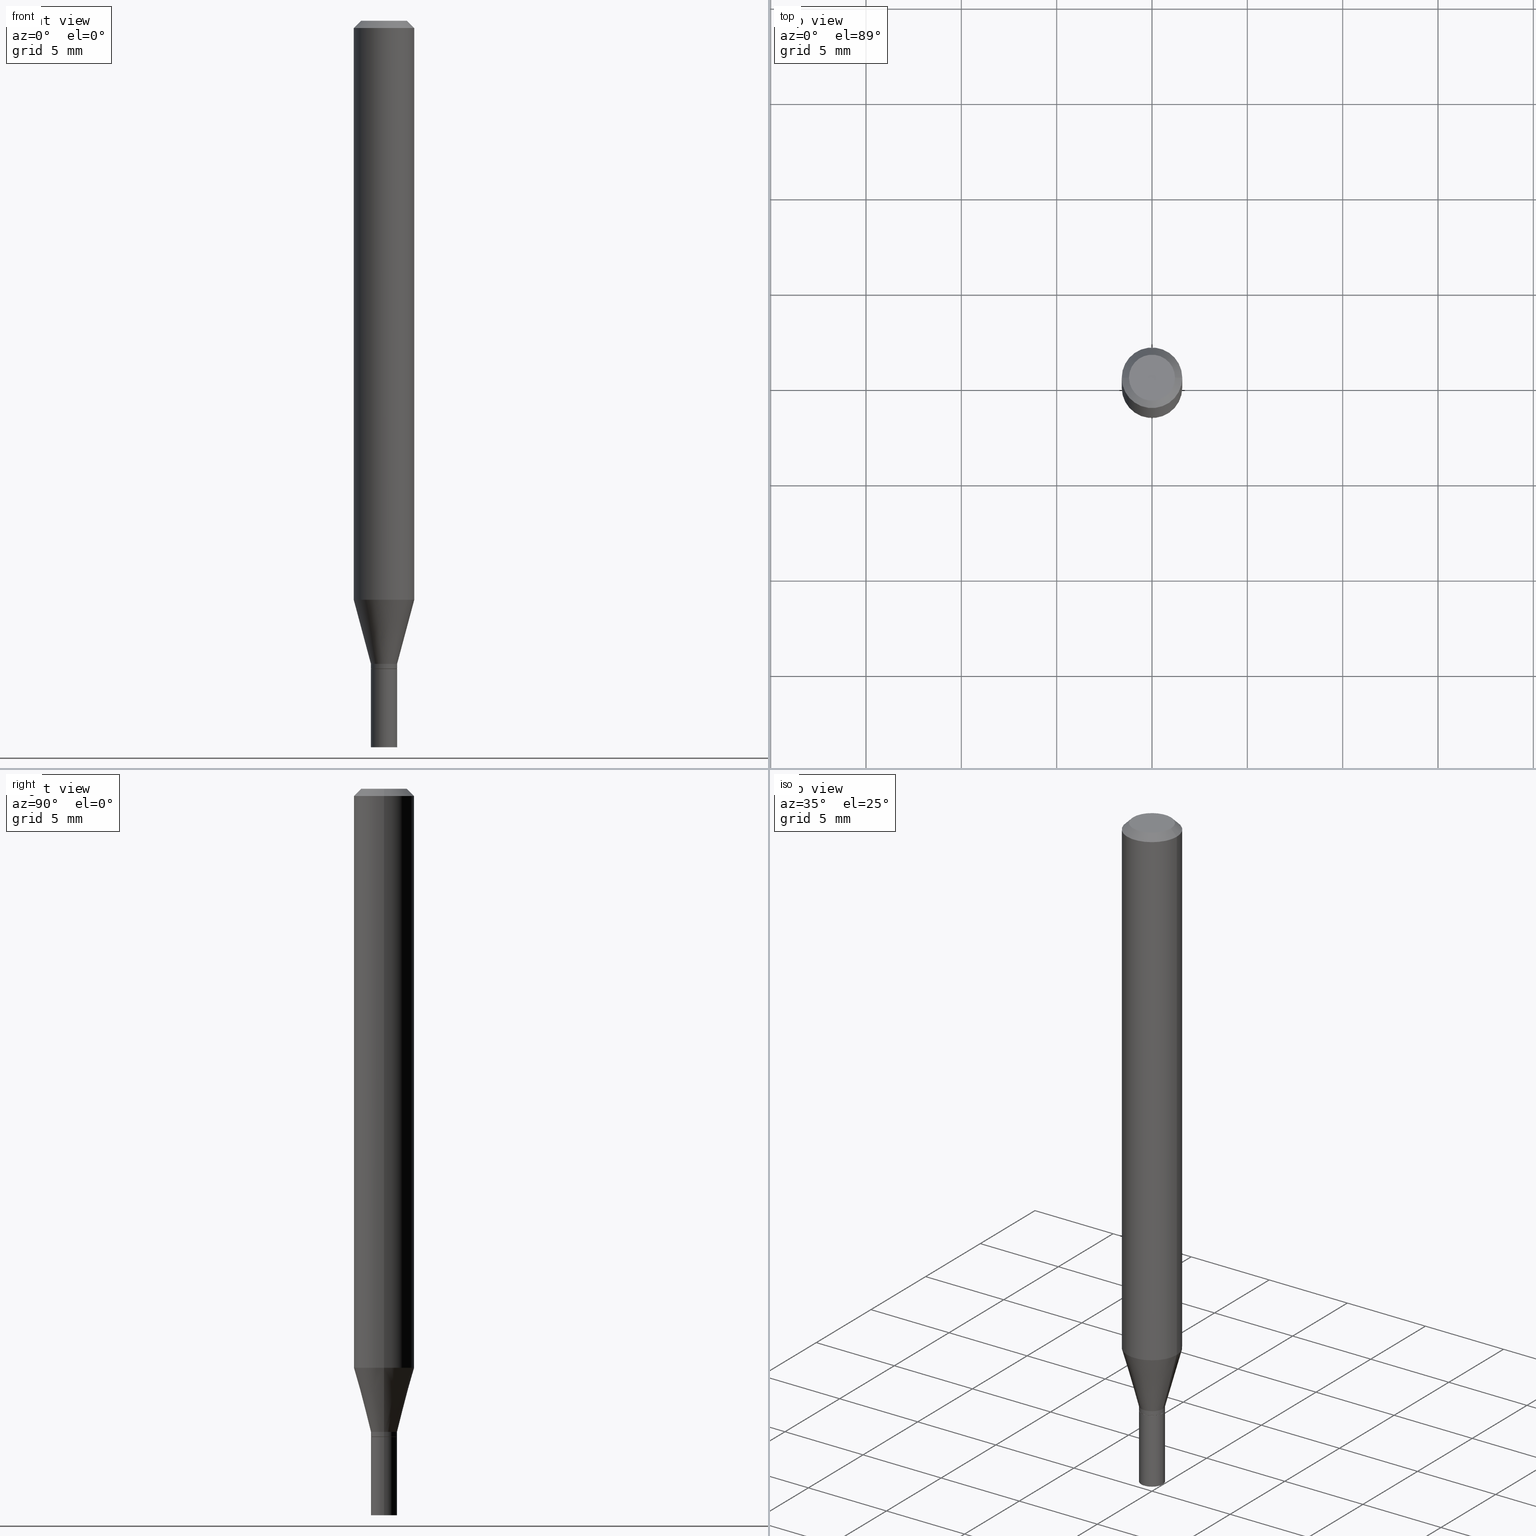
[diagram: canonical four-view strip — front | top / right | iso, engineering-drawing reading convention]
A machine part, canonical four-view strip (front | top / right | iso — engineering-drawing reading convention). The complete STEP part file that produces these views, byte-faithful:
ISO-10303-21;
HEADER;
FILE_DESCRIPTION (( 'STEP AP203' ),
    '1' );
FILE_NAME ('02483.STEP',
    '2024-03-18T20:52:33',
    ( '' ),
    ( '' ),
    'SwSTEP 2.0',
    'SolidWorks 2023',
    '' );
FILE_SCHEMA (( 'CONFIG_CONTROL_DESIGN' ));
ENDSEC;

DATA;
#1 = VERTEX_POINT ( 'NONE', #338 ) ;
#2 = COORDINATED_UNIVERSAL_TIME_OFFSET ( 5, 0, .BEHIND. ) ;
#3 = DIRECTION ( 'NONE',  ( 0.7071067811865420216, -7.319954787623237113E-15, -0.7071067811865530128 ) ) ;
#4 = ORIENTED_EDGE ( 'NONE', *, *, #87, .F. ) ;
#5 = AXIS2_PLACEMENT_3D ( 'NONE', #382, #321, #357 ) ;
#6 = CYLINDRICAL_SURFACE ( 'NONE', #419, 0.02699999999999999969 ) ;
#7 = EDGE_LOOP ( 'NONE', ( #116, #214 ) ) ;
#8 = DIMENSIONAL_EXPONENTS ( 1.000000000000000000, 0.000000000000000000, 0.000000000000000000, 0.000000000000000000, 0.000000000000000000, 0.000000000000000000, 0.000000000000000000 ) ;
#9 = VERTEX_POINT ( 'NONE', #70 ) ;
#10 = EDGE_CURVE ( 'NONE', #275, #85, #435, .T. ) ;
#11 = DIRECTION ( 'NONE',  ( 1.000000000000000000, -6.982962677686267499E-15, 4.852736867747366768E-29 ) ) ;
#12 = FACE_OUTER_BOUND ( 'NONE', #453, .T. ) ;
#13 = DIRECTION ( 'NONE',  ( 1.000000000000000000, -6.982962677686261189E-15, 0.000000000000000000 ) ) ;
#14 = ORIENTED_EDGE ( 'NONE', *, *, #90, .F. ) ;
#15 = CARTESIAN_POINT ( 'NONE',  ( 3.272037262675712888E-29, -4.671602031372128143E-15, -1.338000000000000078 ) ) ;
#16 = CONICAL_SURFACE ( 'NONE', #374, 0.02649999999999999925, 0.7853981633974739252 ) ;
#17 = ORIENTED_EDGE ( 'NONE', *, *, #21, .T. ) ;
#18 = PERSON ( 'UNSPECIFIED', 'UNSPECIFIED', 'UNSPECIFIED', ('UNSPECIFIED'), ('UNSPECIFIED'), ('UNSPECIFIED') ) ;
#19 = CARTESIAN_POINT ( 'NONE',  ( 3.272037262675712888E-29, -4.671602031372128143E-15, -1.338000000000000078 ) ) ;
#20 = DIRECTION ( 'NONE',  ( 2.445468806185136597E-29, -3.491481338843145583E-15, -1.000000000000000000 ) ) ;
#21 = EDGE_CURVE ( 'NONE', #449, #38, #451, .T. ) ;
#22 = VERTEX_POINT ( 'NONE', #149 ) ;
#23 = CARTESIAN_POINT ( 'NONE',  ( -0.02699999999999992337, -4.478009752047480997E-15, -1.337500000000000133 ) ) ;
#24 = CYLINDRICAL_SURFACE ( 'NONE', #152, 0.06250000000000000000 ) ;
#25 = LINE ( 'NONE', #279, #172 ) ;
#26 = EDGE_CURVE ( 'NONE', #85, #22, #224, .T. ) ;
#27 = CIRCLE ( 'NONE', #217, 0.06250000000000000000 ) ;
#28 = AXIS2_PLACEMENT_3D ( 'NONE', #48, #74, #366 ) ;
#29 = ORIENTED_EDGE ( 'NONE', *, *, #193, .F. ) ;
#30 = CYLINDRICAL_SURFACE ( 'NONE', #105, 0.02699999999999999969 ) ;
#31 = FACE_OUTER_BOUND ( 'NONE', #88, .T. ) ;
#32 = CARTESIAN_POINT ( 'NONE',  ( -0.02699999999999992684, 1.918465386552265303E-16, -1.328112474368820963E-30 ) ) ;
#33 = CONICAL_SURFACE ( 'NONE', #307, 0.02699999999999992684, 0.2617993877991494633 ) ;
#34 = APPROVAL_ROLE ( '' ) ;
#35 = APPROVAL ( #337, 'UNSPECIFIED' ) ;
#36 = AXIS2_PLACEMENT_3D ( 'NONE', #192, #43, #13 ) ;
#37 = AXIS2_PLACEMENT_3D ( 'NONE', #387, #412, #454 ) ;
#38 = VERTEX_POINT ( 'NONE', #196 ) ;
#39 = VECTOR ( 'NONE', #316, 39.37007874015748143 ) ;
#40 = ADVANCED_FACE ( 'NONE', ( #125 ), #322, .F. ) ;
#41 = DIRECTION ( 'NONE',  ( 1.000000000000000000, -6.982962677686280910E-15, 0.000000000000000000 ) ) ;
#42 = ADVANCED_FACE ( 'NONE', ( #121 ), #56, .T. ) ;
#43 = DIRECTION ( 'NONE',  ( -2.445468806185136597E-29, 3.491481338843145583E-15, 1.000000000000000000 ) ) ;
#44 = DIRECTION ( 'NONE',  ( 1.000000000000000000, -6.982962677686261189E-15, 0.000000000000000000 ) ) ;
#45 = CARTESIAN_POINT ( 'NONE',  ( 3.668203209277705088E-31, -5.237222008264718399E-17, -0.01499999999999999944 ) ) ;
#46 = EDGE_CURVE ( 'NONE', #296, #22, #461, .T. ) ;
#47 = ORIENTED_EDGE ( 'NONE', *, *, #65, .T. ) ;
#48 = CARTESIAN_POINT ( 'NONE',  ( 0.000000000000000000, 0.000000000000000000, 0.000000000000000000 ) ) ;
#49 = CIRCLE ( 'NONE', #410, 0.02699999999999992337 ) ;
#50 = EDGE_CURVE ( 'NONE', #449, #265, #94, .T. ) ;
#51 = AXIS2_PLACEMENT_3D ( 'NONE', #123, #408, #445 ) ;
#52 = CC_DESIGN_DATE_AND_TIME_ASSIGNMENT ( #262, #427, ( #258 ) ) ;
#53 = DATE_AND_TIME ( #375, #369 ) ;
#54 = CARTESIAN_POINT ( 'NONE',  ( 3.270814528272620647E-29, -4.669856290702708218E-15, -1.337500000000000133 ) ) ;
#55 = DIRECTION ( 'NONE',  ( -2.445468806185136597E-29, 3.491481338843145583E-15, 1.000000000000000000 ) ) ;
#56 = CYLINDRICAL_SURFACE ( 'NONE', #145, 0.02699999999999992684 ) ;
#57 = AXIS2_PLACEMENT_3D ( 'NONE', #19, #304, #397 ) ;
#58 = FACE_OUTER_BOUND ( 'NONE', #260, .T. ) ;
#59 = DIRECTION ( 'NONE',  ( 1.000000000000000000, -6.982962677686262766E-15, 0.000000000000000000 ) ) ;
#60 = CARTESIAN_POINT ( 'NONE',  ( 0.000000000000000000, 0.000000000000000000, 0.000000000000000000 ) ) ;
#61 = CARTESIAN_POINT ( 'NONE',  ( 3.668203209277705088E-31, -5.237222008264718399E-17, -0.01499999999999999944 ) ) ;
#62 = ORIENTED_EDGE ( 'NONE', *, *, #211, .F. ) ;
#63 = CARTESIAN_POINT ( 'NONE',  ( 2.923587783542086622E-29, -4.174108523850133238E-15, -1.195512196331304677 ) ) ;
#64 = DIRECTION ( 'NONE',  ( -2.445468806185136597E-29, 3.491481338843145583E-15, 1.000000000000000000 ) ) ;
#65 = EDGE_CURVE ( 'NONE', #9, #296, #127, .T. ) ;
#66 = PERSON_AND_ORGANIZATION_ROLE ( 'design_supplier' ) ;
#67 =( NAMED_UNIT ( * ) SI_UNIT ( $, .STERADIAN. ) SOLID_ANGLE_UNIT ( ) );
#68 = VERTEX_POINT ( 'NONE', #108 ) ;
#69 = COORDINATED_UNIVERSAL_TIME_OFFSET ( 5, 0, .BEHIND. ) ;
#70 = CARTESIAN_POINT ( 'NONE',  ( -0.06250000000000000000, -3.730019314000071411E-15, -1.195512196331304677 ) ) ;
#71 = PERSON_AND_ORGANIZATION_ROLE ( 'creator' ) ;
#72 = AXIS2_PLACEMENT_3D ( 'NONE', #117, #269, #430 ) ;
#73 = APPROVAL_PERSON_ORGANIZATION ( #373, #330, #313 ) ;
#74 = DIRECTION ( 'NONE',  ( 0.000000000000000000, 0.000000000000000000, 1.000000000000000000 ) ) ;
#75 = UNCERTAINTY_MEASURE_WITH_UNIT (LENGTH_MEASURE( 1.000000000000000082E-05 ), #213, 'distance_accuracy_value', 'NONE');
#76 = CIRCLE ( 'NONE', #298, 0.06250000000000000000 ) ;
#77 = LOCAL_TIME ( 16, 52, 33.00000000000000000, #138 ) ;
#78 = DIRECTION ( 'NONE',  ( 1.000000000000000000, -6.982962677686265922E-15, 4.876176775795935793E-29 ) ) ;
#79 = DIRECTION ( 'NONE',  ( 1.000000000000000000, -6.982962677686266711E-15, 4.876176775795935793E-29 ) ) ;
#80 = VERTEX_POINT ( 'NONE', #393 ) ;
#81 = DIRECTION ( 'NONE',  ( 1.000000000000000000, -6.982962677686266711E-15, 0.000000000000000000 ) ) ;
#82 = DIRECTION ( 'NONE',  ( -2.445468806185136597E-29, 3.491481338843145583E-15, 1.000000000000000000 ) ) ;
#83 = AXIS2_PLACEMENT_3D ( 'NONE', #423, #111, #44 ) ;
#84 = APPLICATION_CONTEXT ( 'configuration controlled 3d designs of mechanical parts and assemblies' ) ;
#85 = VERTEX_POINT ( 'NONE', #97 ) ;
#86 = DIRECTION ( 'NONE',  ( 1.000000000000000000, -6.982962677686265922E-15, 4.876176775795936353E-29 ) ) ;
#87 = EDGE_CURVE ( 'NONE', #80, #381, #465, .T. ) ;
#88 = EDGE_LOOP ( 'NONE', ( #236, #107 ) ) ;
#89 = FACE_OUTER_BOUND ( 'NONE', #388, .T. ) ;
#90 = EDGE_CURVE ( 'NONE', #381, #166, #49, .T. ) ;
#91 = CARTESIAN_POINT ( 'NONE',  ( 0.02649999999999999925, -4.856650542330814622E-15, -1.338000000000000078 ) ) ;
#92 = DIRECTION ( 'NONE',  ( 1.000000000000000000, -6.982962677686279332E-15, 0.000000000000000000 ) ) ;
#93 = AXIS2_PLACEMENT_3D ( 'NONE', #339, #400, #112 ) ;
#94 = LINE ( 'NONE', #352, #391 ) ;
#95 = CC_DESIGN_APPROVAL ( #341, ( #258 ) ) ;
#96 = DIRECTION ( 'NONE',  ( 1.000000000000000000, -6.982962677686267499E-15, 4.852736867747366768E-29 ) ) ;
#97 = CARTESIAN_POINT ( 'NONE',  ( 0.06250000000000000000, -4.610543691205524908E-15, -1.195512196331304677 ) ) ;
#98 = PERSON_AND_ORGANIZATION ( #18, #315 ) ;
#99 = EDGE_LOOP ( 'NONE', ( #110, #47, #314, #284 ) ) ;
#100 = EDGE_LOOP ( 'NONE', ( #159, #151, #302, #364 ) ) ;
#101 = APPLICATION_PROTOCOL_DEFINITION ( 'international standard', 'config_control_design', 1994, #84 ) ;
#102 = ORIENTED_EDGE ( 'NONE', *, *, #120, .F. ) ;
#103 = CONICAL_SURFACE ( 'NONE', #439, 0.06250000000000000000, 0.7853981633974405074 ) ;
#104 = AXIS2_PLACEMENT_3D ( 'NONE', #355, #385, #86 ) ;
#105 = AXIS2_PLACEMENT_3D ( 'NONE', #137, #174, #329 ) ;
#106 = EDGE_CURVE ( 'NONE', #38, #1, #226, .T. ) ;
#107 = ORIENTED_EDGE ( 'NONE', *, *, #247, .F. ) ;
#108 = CARTESIAN_POINT ( 'NONE',  ( 0.04749999999999999362, -4.035134999187574186E-16, 2.354505479474186932E-16 ) ) ;
#109 = CALENDAR_DATE ( 2024, 18, 3 ) ;
#110 = ORIENTED_EDGE ( 'NONE', *, *, #390, .T. ) ;
#111 = DIRECTION ( 'NONE',  ( -2.445468806185136597E-29, 3.491481338843145583E-15, 1.000000000000000000 ) ) ;
#112 = DIRECTION ( 'NONE',  ( 1.000000000000000000, -6.982962677686279332E-15, 0.000000000000000000 ) ) ;
#113 = COORDINATED_UNIVERSAL_TIME_OFFSET ( 5, 0, .BEHIND. ) ;
#114 = EDGE_CURVE ( 'NONE', #22, #296, #76, .T. ) ;
#115 = CARTESIAN_POINT ( 'NONE',  ( 0.02699999999999992337, -4.858396283000236125E-15, -1.337500000000000133 ) ) ;
#116 = ORIENTED_EDGE ( 'NONE', *, *, #263, .T. ) ;
#117 = CARTESIAN_POINT ( 'NONE',  ( 3.272037262675712888E-29, -4.671602031372128143E-15, -1.338000000000000078 ) ) ;
#118 = FACE_OUTER_BOUND ( 'NONE', #163, .T. ) ;
#119 = CARTESIAN_POINT ( 'NONE',  ( 0.000000000000000000, 0.000000000000000000, 0.000000000000000000 ) ) ;
#120 = EDGE_CURVE ( 'NONE', #166, #381, #278, .T. ) ;
#121 = FACE_OUTER_BOUND ( 'NONE', #153, .T. ) ;
#122 = PLANE ( 'NONE',  #360 ) ;
#123 = CARTESIAN_POINT ( 'NONE',  ( 0.000000000000000000, 0.000000000000000000, 0.000000000000000000 ) ) ;
#124 = DIRECTION ( 'NONE',  ( 1.000000000000000000, -6.982962677686279332E-15, 0.000000000000000000 ) ) ;
#125 = FACE_OUTER_BOUND ( 'NONE', #267, .T. ) ;
#126 = ADVANCED_FACE ( 'NONE', ( #199 ), #16, .T. ) ;
#127 = LINE ( 'NONE', #300, #464 ) ;
#128 = PRODUCT_DEFINITION_SHAPE ( 'NONE', 'NONE',  #258 ) ;
#129 = ORIENTED_EDGE ( 'NONE', *, *, #87, .T. ) ;
#130 = FACE_OUTER_BOUND ( 'NONE', #324, .T. ) ;
#131 = AXIS2_PLACEMENT_3D ( 'NONE', #386, #448, #96 ) ;
#132 = LOCAL_TIME ( 16, 52, 33.00000000000000000, #2 ) ;
#133 = ORIENTED_EDGE ( 'NONE', *, *, #245, .T. ) ;
#134 = DIRECTION ( 'NONE',  ( -1.000000000000000000, 6.982962677686266711E-15, 0.000000000000000000 ) ) ;
#135 = CC_DESIGN_PERSON_AND_ORGANIZATION_ASSIGNMENT ( #281, #71, ( #258 ) ) ;
#136 = CARTESIAN_POINT ( 'NONE',  ( 3.272037262675712888E-29, -4.671602031372128143E-15, -1.338000000000000078 ) ) ;
#137 = CARTESIAN_POINT ( 'NONE',  ( 0.000000000000000000, 0.000000000000000000, 0.000000000000000000 ) ) ;
#138 = COORDINATED_UNIVERSAL_TIME_OFFSET ( 5, 0, .BEHIND. ) ;
#139 = ADVANCED_FACE ( 'NONE', ( #118 ), #6, .T. ) ;
#140 = AXIS2_PLACEMENT_3D ( 'NONE', #54, #344, #310 ) ;
#141 = DIRECTION ( 'NONE',  ( 1.000000000000000000, -6.982962677686262766E-15, 0.000000000000000000 ) ) ;
#142 = CARTESIAN_POINT ( 'NONE',  ( 3.270814528272620647E-29, -4.669856290702708218E-15, -1.337500000000000133 ) ) ;
#143 = DATE_AND_TIME ( #180, #77 ) ;
#144 = ORIENTED_EDGE ( 'NONE', *, *, #90, .T. ) ;
#145 = AXIS2_PLACEMENT_3D ( 'NONE', #60, #205, #234 ) ;
#146 = EDGE_CURVE ( 'NONE', #265, #1, #340, .T. ) ;
#147 = PRODUCT_RELATED_PRODUCT_CATEGORY ( 'detail', '', ( #167 ) ) ;
#148 = DATE_AND_TIME ( #466, #259 ) ;
#149 = CARTESIAN_POINT ( 'NONE',  ( 0.06250000000000000000, -4.888073874380388472E-16, -0.01499999999999999944 ) ) ;
#150 = VECTOR ( 'NONE', #3, 39.37007874015748143 ) ;
#151 = ORIENTED_EDGE ( 'NONE', *, *, #183, .T. ) ;
#152 = AXIS2_PLACEMENT_3D ( 'NONE', #119, #450, #79 ) ;
#153 = EDGE_LOOP ( 'NONE', ( #396, #144, #456, #29 ) ) ;
#154 = APPROVAL_STATUS ( 'not_yet_approved' ) ;
#155 = EDGE_CURVE ( 'NONE', #238, #80, #187, .T. ) ;
#156 = CARTESIAN_POINT ( 'NONE',  ( 3.576687321579069994E-29, -5.368277968210015545E-15, -1.500000000000000222 ) ) ;
#157 = APPROVAL_STATUS ( 'not_yet_approved' ) ;
#158 = EDGE_CURVE ( 'NONE', #275, #377, #256, .T. ) ;
#159 = ORIENTED_EDGE ( 'NONE', *, *, #175, .F. ) ;
#160 = VECTOR ( 'NONE', #295, 39.37007874015748143 ) ;
#161 = PRODUCT_DEFINITION_FORMATION_WITH_SPECIFIED_SOURCE ( 'ANY', '', #167, .NOT_KNOWN. ) ;
#162 = DIRECTION ( 'NONE',  ( 1.000000000000000000, -6.982962677686277755E-15, 0.000000000000000000 ) ) ;
#163 = EDGE_LOOP ( 'NONE', ( #201, #17, #359, #354 ) ) ;
#164 = LINE ( 'NONE', #320, #150 ) ;
#165 = CARTESIAN_POINT ( 'NONE',  ( 3.272037262675712888E-29, -4.671602031372128143E-15, -1.338000000000000078 ) ) ;
#166 = VERTEX_POINT ( 'NONE', #115 ) ;
#167 = PRODUCT ( '02483', '02483', '', ( #433 ) ) ;
#168 = FACE_OUTER_BOUND ( 'NONE', #293, .T. ) ;
#169 = VERTEX_POINT ( 'NONE', #225 ) ;
#170 = CC_DESIGN_PERSON_AND_ORGANIZATION_ASSIGNMENT ( #98, #66, ( #161 ) ) ;
#171 = VECTOR ( 'NONE', #291, 39.37007874015748854 ) ;
#172 = VECTOR ( 'NONE', #273, 39.37007874015748143 ) ;
#173 = DIRECTION ( 'NONE',  ( 1.000000000000000000, -6.982962677686266711E-15, 0.000000000000000000 ) ) ;
#174 = DIRECTION ( 'NONE',  ( -2.445468806185136597E-29, 3.491481338843145583E-15, 1.000000000000000000 ) ) ;
#175 = EDGE_CURVE ( 'NONE', #68, #169, #395, .T. ) ;
#176 = FACE_OUTER_BOUND ( 'NONE', #7, .T. ) ;
#177 = LINE ( 'NONE', #32, #160 ) ;
#178 = ORIENTED_EDGE ( 'NONE', *, *, #211, .T. ) ;
#179 = CONICAL_SURFACE ( 'NONE', #5, 0.02649999999999999925, 0.7853981633974739252 ) ;
#180 = CALENDAR_DATE ( 2024, 18, 3 ) ;
#181 = ADVANCED_FACE ( 'NONE', ( #372 ), #266, .F. ) ;
#182 = ADVANCED_FACE ( 'NONE', ( #232 ), #277, .T. ) ;
#183 = EDGE_CURVE ( 'NONE', #68, #22, #164, .T. ) ;
#184 = AXIS2_PLACEMENT_3D ( 'NONE', #402, #348, #11 ) ;
#185 = PERSON_AND_ORGANIZATION ( #18, #315 ) ;
#186 = DIRECTION ( 'NONE',  ( -2.445468806185136877E-29, 3.491481338843145188E-15, 1.000000000000000000 ) ) ;
#187 = CIRCLE ( 'NONE', #72, 0.02649999999999999925 ) ;
#188 = CARTESIAN_POINT ( 'NONE',  ( 0.02699999999999999969, -1.885399922975291894E-16, 1.316567729464902510E-30 ) ) ;
#189 = ORIENTED_EDGE ( 'NONE', *, *, #46, .F. ) ;
#190 = DESIGN_CONTEXT ( 'detailed design', #194, 'design' ) ;
#191 = DIRECTION ( 'NONE',  ( 1.000000000000000000, -6.982962677686266711E-15, 4.876176775795935232E-29 ) ) ;
#192 = CARTESIAN_POINT ( 'NONE',  ( 3.668203209277704895E-29, -5.237222008264718177E-15, -1.500000000000000222 ) ) ;
#193 = EDGE_CURVE ( 'NONE', #377, #275, #229, .T. ) ;
#194 = APPLICATION_CONTEXT ( 'configuration controlled 3d designs of mechanical parts and assemblies' ) ;
#195 = CC_DESIGN_PERSON_AND_ORGANIZATION_ASSIGNMENT ( #428, #301, ( #161 ) ) ;
#196 = CARTESIAN_POINT ( 'NONE',  ( 0.02699999999999999969, -5.425762000562247662E-15, -1.500000000000000222 ) ) ;
#197 = ORIENTED_EDGE ( 'NONE', *, *, #306, .T. ) ;
#198 = VECTOR ( 'NONE', #270, 39.37007874015748854 ) ;
#199 = FACE_OUTER_BOUND ( 'NONE', #342, .T. ) ;
#200 = DIRECTION ( 'NONE',  ( -2.438088387897960049E-29, 3.491481338843145188E-15, 1.000000000000000000 ) ) ;
#201 = ORIENTED_EDGE ( 'NONE', *, *, #50, .F. ) ;
#202 = CYLINDRICAL_SURFACE ( 'NONE', #104, 0.02699999999999992684 ) ;
#203 = DIRECTION ( 'NONE',  ( -2.445468806185136597E-29, 3.491481338843145583E-15, 1.000000000000000000 ) ) ;
#204 = ORIENTED_EDGE ( 'NONE', *, *, #436, .F. ) ;
#205 = DIRECTION ( 'NONE',  ( -2.445468806185136597E-29, 3.491481338843145583E-15, 1.000000000000000000 ) ) ;
#206 = DIRECTION ( 'NONE',  ( 2.445468806185136597E-29, -3.491481338843145583E-15, -1.000000000000000000 ) ) ;
#207 = ORIENTED_EDGE ( 'NONE', *, *, #245, .F. ) ;
#208 = FACE_OUTER_BOUND ( 'NONE', #414, .T. ) ;
#209 = CIRCLE ( 'NONE', #131, 0.04749999999999999362 ) ;
#210 = CARTESIAN_POINT ( 'NONE',  ( 3.668203209277705088E-31, -5.237222008264718399E-17, -0.01499999999999999944 ) ) ;
#211 = EDGE_CURVE ( 'NONE', #38, #449, #312, .T. ) ;
#212 = ORIENTED_EDGE ( 'NONE', *, *, #268, .T. ) ;
#213 =( CONVERSION_BASED_UNIT ( 'INCH', #250 ) LENGTH_UNIT ( ) NAMED_UNIT ( #8 ) );
#214 = ORIENTED_EDGE ( 'NONE', *, *, #175, .T. ) ;
#215 = DIRECTION ( 'NONE',  ( -0.7071067811865656694, 7.493145998870420424E-15, 0.7071067811865294761 ) ) ;
#216 = ORIENTED_EDGE ( 'NONE', *, *, #193, .T. ) ;
#217 = AXIS2_PLACEMENT_3D ( 'NONE', #331, #460, #141 ) ;
#218 = CC_DESIGN_APPROVAL ( #330, ( #294 ) ) ;
#219 = ORIENTED_EDGE ( 'NONE', *, *, #50, .T. ) ;
#220 = CARTESIAN_POINT ( 'NONE',  ( 3.247582574613861342E-29, -4.636687217983698072E-15, -1.328000000000000069 ) ) ;
#221 = AXIS2_PLACEMENT_3D ( 'NONE', #165, #418, #162 ) ;
#222 = CC_DESIGN_APPROVAL ( #35, ( #161 ) ) ;
#223 = PERSON_AND_ORGANIZATION ( #18, #315 ) ;
#224 = LINE ( 'NONE', #274, #311 ) ;
#225 = CARTESIAN_POINT ( 'NONE',  ( -0.04749999999999999362, 3.578768372314215436E-16, 2.354505479474137135E-16 ) ) ;
#226 = LINE ( 'NONE', #188, #380 ) ;
#227 = ORIENTED_EDGE ( 'NONE', *, *, #21, .F. ) ;
#228 = APPLICATION_PROTOCOL_DEFINITION ( 'international standard', 'config_control_design', 1994, #194 ) ;
#229 = CIRCLE ( 'NONE', #271, 0.02699999999999992684 ) ;
#230 = DIRECTION ( 'NONE',  ( -2.445468806185136597E-29, 3.491481338843145583E-15, 1.000000000000000000 ) ) ;
#231 = ADVANCED_FACE ( 'NONE', ( #31 ), #122, .F. ) ;
#232 = FACE_OUTER_BOUND ( 'NONE', #99, .T. ) ;
#233 = ORIENTED_EDGE ( 'NONE', *, *, #183, .F. ) ;
#234 = DIRECTION ( 'NONE',  ( 1.000000000000000000, -6.982962677686265922E-15, 4.876176775795936353E-29 ) ) ;
#235 = CARTESIAN_POINT ( 'NONE',  ( -0.06250000000000000000, -1.669151162116327740E-15, -0.01499999999999999944 ) ) ;
#236 = ORIENTED_EDGE ( 'NONE', *, *, #155, .F. ) ;
#237 = CIRCLE ( 'NONE', #221, 0.02649999999999999925 ) ;
#238 = VERTEX_POINT ( 'NONE', #91 ) ;
#239 = CARTESIAN_POINT ( 'NONE',  ( 0.02699999999999992684, -1.885399922975286717E-16, 1.316567729464899182E-30 ) ) ;
#240 = ORIENTED_EDGE ( 'NONE', *, *, #146, .T. ) ;
#241 = CARTESIAN_POINT ( 'NONE',  ( -0.02699999999999992684, -4.087429996664271131E-15, -1.328000000000000069 ) ) ;
#242 = ADVANCED_BREP_SHAPE_REPRESENTATION ( '02483', ( #429, #282, #28 ), #248 ) ;
#243 = DIRECTION ( 'NONE',  ( -2.445468806185136597E-29, 3.491481338843145583E-15, 1.000000000000000000 ) ) ;
#244 = ORIENTED_EDGE ( 'NONE', *, *, #263, .F. ) ;
#245 = EDGE_CURVE ( 'NONE', #377, #9, #356, .T. ) ;
#246 = AXIS2_PLACEMENT_3D ( 'NONE', #379, #243, #173 ) ;
#247 = EDGE_CURVE ( 'NONE', #80, #238, #237, .T. ) ;
#248 =( GEOMETRIC_REPRESENTATION_CONTEXT ( 3 ) GLOBAL_UNCERTAINTY_ASSIGNED_CONTEXT ( ( #75 ) ) GLOBAL_UNIT_ASSIGNED_CONTEXT ( ( #213, #289, #67 ) ) REPRESENTATION_CONTEXT ( 'NONE', 'WORKASPACE' ) );
#249 = LINE ( 'NONE', #443, #333 ) ;
#250 = LENGTH_MEASURE_WITH_UNIT ( LENGTH_MEASURE( 0.02539999999999999897 ), #334 );
#251 = PERSON_AND_ORGANIZATION ( #18, #315 ) ;
#252 = PLANE ( 'NONE',  #37 ) ;
#253 = CARTESIAN_POINT ( 'NONE',  ( -0.02649999999999999925, -4.483308206395701821E-15, -1.338000000000000078 ) ) ;
#254 = DATE_TIME_ROLE ( 'classification_date' ) ;
#255 = CARTESIAN_POINT ( 'NONE',  ( -0.02699999999999999969, -4.762565481163196334E-15, -1.500000000000000222 ) ) ;
#256 = CIRCLE ( 'NONE', #93, 0.02699999999999992684 ) ;
#257 = AXIS2_PLACEMENT_3D ( 'NONE', #156, #272, #78 ) ;
#258 = PRODUCT_DEFINITION ( 'UNKNOWN', '', #161, #190 ) ;
#259 = LOCAL_TIME ( 16, 52, 33.00000000000000000, #69 ) ;
#260 = EDGE_LOOP ( 'NONE', ( #343, #133, #422, #384 ) ) ;
#261 = SECURITY_CLASSIFICATION_LEVEL ( 'unclassified' ) ;
#262 = DATE_AND_TIME ( #109, #132 ) ;
#263 = EDGE_CURVE ( 'NONE', #169, #68, #209, .T. ) ;
#264 = DIRECTION ( 'NONE',  ( 1.000000000000000000, -6.982962677686277755E-15, 0.000000000000000000 ) ) ;
#265 = VERTEX_POINT ( 'NONE', #318 ) ;
#266 = PLANE ( 'NONE',  #257 ) ;
#267 = EDGE_LOOP ( 'NONE', ( #407, #240 ) ) ;
#268 = EDGE_CURVE ( 'NONE', #169, #296, #249, .T. ) ;
#269 = DIRECTION ( 'NONE',  ( -2.445468806185136597E-29, 3.491481338843145583E-15, 1.000000000000000000 ) ) ;
#270 = DIRECTION ( 'NONE',  ( 0.2588190451025207395, 1.565188264969626109E-15, 0.9659258262890682012 ) ) ;
#271 = AXIS2_PLACEMENT_3D ( 'NONE', #220, #203, #92 ) ;
#272 = DIRECTION ( 'NONE',  ( -2.438088387897960049E-29, 3.491481338843145188E-15, 1.000000000000000000 ) ) ;
#273 = DIRECTION ( 'NONE',  ( 0.7071067811865656694, -2.468850131082446387E-15, 0.7071067811865294761 ) ) ;
#274 = CARTESIAN_POINT ( 'NONE',  ( 0.06250000000000000000, -4.364351673553916694E-16, 3.047610484872459871E-30 ) ) ;
#275 = VERTEX_POINT ( 'NONE', #406 ) ;
#276 = DIRECTION ( 'NONE',  ( -0.7071067811865420216, 2.468850131082199474E-15, -0.7071067811865530128 ) ) ;
#277 = CYLINDRICAL_SURFACE ( 'NONE', #51, 0.06250000000000000000 ) ;
#278 = CIRCLE ( 'NONE', #140, 0.02699999999999992337 ) ;
#279 = CARTESIAN_POINT ( 'NONE',  ( 0.02649999999999999925, -4.856650542330814622E-15, -1.338000000000000078 ) ) ;
#280 = CIRCLE ( 'NONE', #401, 0.02699999999999999969 ) ;
#281 = PERSON_AND_ORGANIZATION ( #18, #315 ) ;
#282 = MANIFOLD_SOLID_BREP ( 'Body-Move/Copy2[2]', #409 ) ;
#283 = CARTESIAN_POINT ( 'NONE',  ( 3.247582574613861342E-29, -4.636687217983698072E-15, -1.328000000000000069 ) ) ;
#284 = ORIENTED_EDGE ( 'NONE', *, *, #26, .F. ) ;
#285 = DIRECTION ( 'NONE',  ( -2.445468806185136597E-29, 3.491481338843145583E-15, 1.000000000000000000 ) ) ;
#286 = ORIENTED_EDGE ( 'NONE', *, *, #106, .F. ) ;
#287 = DIRECTION ( 'NONE',  ( 1.000000000000000000, -6.982962677686261189E-15, 0.000000000000000000 ) ) ;
#288 = ADVANCED_FACE ( 'NONE', ( #168 ), #368, .T. ) ;
#289 =( NAMED_UNIT ( * ) PLANE_ANGLE_UNIT ( ) SI_UNIT ( $, .RADIAN. ) );
#290 = APPROVAL_DATE_TIME ( #53, #341 ) ;
#291 = DIRECTION ( 'NONE',  ( -0.2588190451025207395, 5.211531920934546309E-15, 0.9659258262890682012 ) ) ;
#292 = CC_DESIGN_PERSON_AND_ORGANIZATION_ASSIGNMENT ( #223, #305, ( #167 ) ) ;
#293 = EDGE_LOOP ( 'NONE', ( #207, #216, #415, #432 ) ) ;
#294 = SECURITY_CLASSIFICATION ( '', '', #261 ) ;
#295 = DIRECTION ( 'NONE',  ( -2.445468806185136877E-29, 3.491481338843145188E-15, 1.000000000000000000 ) ) ;
#296 = VERTEX_POINT ( 'NONE', #235 ) ;
#297 = DIRECTION ( 'NONE',  ( -2.445468806185136597E-29, 3.491481338843145583E-15, 1.000000000000000000 ) ) ;
#298 = AXIS2_PLACEMENT_3D ( 'NONE', #45, #55, #81 ) ;
#299 = APPROVAL_PERSON_ORGANIZATION ( #398, #341, #34 ) ;
#300 = CARTESIAN_POINT ( 'NONE',  ( -0.06250000000000000000, 4.440892098500626162E-16, -3.074334431409316114E-30 ) ) ;
#301 = PERSON_AND_ORGANIZATION_ROLE ( 'creator' ) ;
#302 = ORIENTED_EDGE ( 'NONE', *, *, #114, .T. ) ;
#303 = ADVANCED_FACE ( 'NONE', ( #323 ), #103, .T. ) ;
#304 = DIRECTION ( 'NONE',  ( -2.445468806185136597E-29, 3.491481338843145583E-15, 1.000000000000000000 ) ) ;
#305 = PERSON_AND_ORGANIZATION_ROLE ( 'design_owner' ) ;
#306 = EDGE_CURVE ( 'NONE', #9, #85, #27, .T. ) ;
#307 = AXIS2_PLACEMENT_3D ( 'NONE', #446, #285, #124 ) ;
#308 = AXIS2_PLACEMENT_3D ( 'NONE', #63, #64, #59 ) ;
#309 = DATE_AND_TIME ( #346, #351 ) ;
#310 = DIRECTION ( 'NONE',  ( 1.000000000000000000, -6.982962677686280910E-15, 0.000000000000000000 ) ) ;
#311 = VECTOR ( 'NONE', #404, 39.37007874015748143 ) ;
#312 = CIRCLE ( 'NONE', #83, 0.02699999999999999969 ) ;
#313 = APPROVAL_ROLE ( '' ) ;
#314 = ORIENTED_EDGE ( 'NONE', *, *, #114, .F. ) ;
#315 = ORGANIZATION ( 'UNSPECIFIED', 'UNSPECIFIED', '' ) ;
#316 = DIRECTION ( 'NONE',  ( -2.445468806185136877E-29, 3.491481338843145188E-15, 1.000000000000000000 ) ) ;
#317 = DIRECTION ( 'NONE',  ( -1.000000000000000000, 6.982962677686265922E-15, -4.876176775795935793E-29 ) ) ;
#318 = CARTESIAN_POINT ( 'NONE',  ( -0.02699999999999999969, -4.762565481163196334E-15, -1.338000000000000078 ) ) ;
#319 = ORIENTED_EDGE ( 'NONE', *, *, #26, .T. ) ;
#320 = CARTESIAN_POINT ( 'NONE',  ( 0.06250000000000000000, -4.811533449433679005E-16, -0.01499999999999999944 ) ) ;
#321 = DIRECTION ( 'NONE',  ( -2.445468806185136597E-29, 3.491481338843145583E-15, 1.000000000000000000 ) ) ;
#322 = PLANE ( 'NONE',  #350 ) ;
#323 = FACE_OUTER_BOUND ( 'NONE', #100, .T. ) ;
#324 = EDGE_LOOP ( 'NONE', ( #4, #332, #328, #14 ) ) ;
#325 = AXIS2_PLACEMENT_3D ( 'NONE', #210, #20, #134 ) ;
#326 = EDGE_CURVE ( 'NONE', #381, #377, #177, .T. ) ;
#327 = CARTESIAN_POINT ( 'NONE',  ( -0.02699999999999992684, -4.444840679328471640E-15, -1.328000000000000069 ) ) ;
#328 = ORIENTED_EDGE ( 'NONE', *, *, #434, .T. ) ;
#329 = DIRECTION ( 'NONE',  ( 1.000000000000000000, -6.982962677686266711E-15, 4.876176775795935232E-29 ) ) ;
#330 = APPROVAL ( #157, 'UNSPECIFIED' ) ;
#331 = CARTESIAN_POINT ( 'NONE',  ( 2.923587783542086622E-29, -4.174108523850133238E-15, -1.195512196331304677 ) ) ;
#332 = ORIENTED_EDGE ( 'NONE', *, *, #247, .T. ) ;
#333 = VECTOR ( 'NONE', #276, 39.37007874015748143 ) ;
#334 =( LENGTH_UNIT ( ) NAMED_UNIT ( * ) SI_UNIT ( $, .METRE. ) );
#335 = CONICAL_SURFACE ( 'NONE', #325, 0.06250000000000000000, 0.7853981633974405074 ) ;
#336 = ADVANCED_FACE ( 'NONE', ( #176 ), #252, .F. ) ;
#337 = APPROVAL_STATUS ( 'not_yet_approved' ) ;
#338 = CARTESIAN_POINT ( 'NONE',  ( 0.02699999999999999969, -4.860142023669657629E-15, -1.338000000000000078 ) ) ;
#339 = CARTESIAN_POINT ( 'NONE',  ( 3.247582574613861342E-29, -4.636687217983698072E-15, -1.328000000000000069 ) ) ;
#340 = CIRCLE ( 'NONE', #57, 0.02699999999999999969 ) ;
#341 = APPROVAL ( #154, 'UNSPECIFIED' ) ;
#342 = EDGE_LOOP ( 'NONE', ( #458, #129, #102, #441 ) ) ;
#343 = ORIENTED_EDGE ( 'NONE', *, *, #158, .T. ) ;
#344 = DIRECTION ( 'NONE',  ( -2.445468806185136597E-29, 3.491481338843145583E-15, 1.000000000000000000 ) ) ;
#345 = ADVANCED_FACE ( 'NONE', ( #89 ), #335, .T. ) ;
#346 = CALENDAR_DATE ( 2024, 18, 3 ) ;
#347 = EDGE_LOOP ( 'NONE', ( #389, #399, #444, #204 ) ) ;
#348 = DIRECTION ( 'NONE',  ( -2.445468806185136597E-29, 3.491481338843145583E-15, 1.000000000000000000 ) ) ;
#349 = DIRECTION ( 'NONE',  ( 2.438088387897960049E-29, -3.491481338843145188E-15, -1.000000000000000000 ) ) ;
#350 = AXIS2_PLACEMENT_3D ( 'NONE', #442, #349, #317 ) ;
#351 = LOCAL_TIME ( 16, 52, 33.00000000000000000, #440 ) ;
#352 = CARTESIAN_POINT ( 'NONE',  ( -0.02699999999999999969, 1.918465386552270480E-16, -1.328112474368824466E-30 ) ) ;
#353 = DIRECTION ( 'NONE',  ( 1.000000000000000000, -6.982962677686265922E-15, 4.876176775795935793E-29 ) ) ;
#354 = ORIENTED_EDGE ( 'NONE', *, *, #146, .F. ) ;
#355 = CARTESIAN_POINT ( 'NONE',  ( 0.000000000000000000, 0.000000000000000000, 0.000000000000000000 ) ) ;
#356 = LINE ( 'NONE', #327, #171 ) ;
#357 = DIRECTION ( 'NONE',  ( 1.000000000000000000, -6.982962677686277755E-15, 0.000000000000000000 ) ) ;
#358 = DIRECTION ( 'NONE',  ( -1.000000000000000000, 6.982962677686266711E-15, 0.000000000000000000 ) ) ;
#359 = ORIENTED_EDGE ( 'NONE', *, *, #106, .T. ) ;
#360 = AXIS2_PLACEMENT_3D ( 'NONE', #136, #200, #353 ) ;
#361 = CC_DESIGN_SECURITY_CLASSIFICATION ( #294, ( #161 ) ) ;
#362 = CC_DESIGN_DATE_AND_TIME_ASSIGNMENT ( #143, #254, ( #294 ) ) ;
#363 = DIRECTION ( 'NONE',  ( -2.445468806185136597E-29, 3.491481338843145583E-15, 1.000000000000000000 ) ) ;
#364 = ORIENTED_EDGE ( 'NONE', *, *, #268, .F. ) ;
#365 = AXIS2_PLACEMENT_3D ( 'NONE', #283, #82, #455 ) ;
#366 = DIRECTION ( 'NONE',  ( 1.000000000000000000, 0.000000000000000000, 0.000000000000000000 ) ) ;
#367 = ADVANCED_FACE ( 'NONE', ( #130 ), #179, .T. ) ;
#368 = CONICAL_SURFACE ( 'NONE', #365, 0.02699999999999992684, 0.2617993877991494633 ) ;
#369 = LOCAL_TIME ( 16, 52, 33.00000000000000000, #113 ) ;
#370 = CARTESIAN_POINT ( 'NONE',  ( 0.02699999999999992684, -4.825227210281226768E-15, -1.328000000000000069 ) ) ;
#371 = ADVANCED_FACE ( 'NONE', ( #58 ), #33, .T. ) ;
#372 = FACE_OUTER_BOUND ( 'NONE', #383, .T. ) ;
#373 = PERSON_AND_ORGANIZATION ( #18, #315 ) ;
#374 = AXIS2_PLACEMENT_3D ( 'NONE', #15, #230, #264 ) ;
#375 = CALENDAR_DATE ( 2024, 18, 3 ) ;
#376 = ADVANCED_FACE ( 'NONE', ( #416 ), #202, .T. ) ;
#377 = VERTEX_POINT ( 'NONE', #241 ) ;
#378 = DIRECTION ( 'NONE',  ( -2.445468806185136597E-29, 3.491481338843145583E-15, 1.000000000000000000 ) ) ;
#379 = CARTESIAN_POINT ( 'NONE',  ( 3.668203209277705088E-31, -5.237222008264718399E-17, -0.01499999999999999944 ) ) ;
#380 = VECTOR ( 'NONE', #186, 39.37007874015748143 ) ;
#381 = VERTEX_POINT ( 'NONE', #23 ) ;
#382 = CARTESIAN_POINT ( 'NONE',  ( 3.272037262675712888E-29, -4.671602031372128143E-15, -1.338000000000000078 ) ) ;
#383 = EDGE_LOOP ( 'NONE', ( #62, #227 ) ) ;
#384 = ORIENTED_EDGE ( 'NONE', *, *, #10, .F. ) ;
#385 = DIRECTION ( 'NONE',  ( -2.445468806185136597E-29, 3.491481338843145583E-15, 1.000000000000000000 ) ) ;
#386 = CARTESIAN_POINT ( 'NONE',  ( -5.757869704046039586E-45, 8.220711943787967025E-31, 2.354505479474161294E-16 ) ) ;
#387 = CARTESIAN_POINT ( 'NONE',  ( 3.316907271900976096E-16, 0.04749999999999999362, -4.812008962134135024E-17 ) ) ;
#388 = EDGE_LOOP ( 'NONE', ( #233, #244, #212, #462 ) ) ;
#389 = ORIENTED_EDGE ( 'NONE', *, *, #120, .T. ) ;
#390 = EDGE_CURVE ( 'NONE', #85, #9, #452, .T. ) ;
#391 = VECTOR ( 'NONE', #447, 39.37007874015748143 ) ;
#392 = ADVANCED_FACE ( 'NONE', ( #208 ), #30, .T. ) ;
#393 = CARTESIAN_POINT ( 'NONE',  ( -0.02649999999999999925, -4.480658979221591409E-15, -1.338000000000000078 ) ) ;
#394 = APPROVAL_ROLE ( '' ) ;
#395 = CIRCLE ( 'NONE', #184, 0.04749999999999999362 ) ;
#396 = ORIENTED_EDGE ( 'NONE', *, *, #326, .F. ) ;
#397 = DIRECTION ( 'NONE',  ( 1.000000000000000000, -6.982962677686261189E-15, 0.000000000000000000 ) ) ;
#398 = PERSON_AND_ORGANIZATION ( #18, #315 ) ;
#399 = ORIENTED_EDGE ( 'NONE', *, *, #326, .T. ) ;
#400 = DIRECTION ( 'NONE',  ( -2.445468806185136597E-29, 3.491481338843145583E-15, 1.000000000000000000 ) ) ;
#401 = AXIS2_PLACEMENT_3D ( 'NONE', #457, #363, #287 ) ;
#402 = CARTESIAN_POINT ( 'NONE',  ( -5.757869704046039586E-45, 8.220711943787967025E-31, 2.354505479474161294E-16 ) ) ;
#403 = ORIENTED_EDGE ( 'NONE', *, *, #65, .F. ) ;
#404 = DIRECTION ( 'NONE',  ( -2.445468806185136877E-29, 3.491481338843145188E-15, 1.000000000000000000 ) ) ;
#405 = SHAPE_DEFINITION_REPRESENTATION ( #128, #242 ) ;
#406 = CARTESIAN_POINT ( 'NONE',  ( 0.02699999999999992684, -4.825227210281226768E-15, -1.328000000000000069 ) ) ;
#407 = ORIENTED_EDGE ( 'NONE', *, *, #417, .T. ) ;
#408 = DIRECTION ( 'NONE',  ( -2.445468806185136597E-29, 3.491481338843145583E-15, 1.000000000000000000 ) ) ;
#409 = CLOSED_SHELL ( 'NONE', ( #376, #126, #303, #182, #371, #288, #420, #345, #336, #231, #367, #42 ) ) ;
#410 = AXIS2_PLACEMENT_3D ( 'NONE', #142, #297, #41 ) ;
#411 = ORIENTED_EDGE ( 'NONE', *, *, #417, .F. ) ;
#412 = DIRECTION ( 'NONE',  ( 2.438088387897960049E-29, -3.491481338843145188E-15, -1.000000000000000000 ) ) ;
#413 = LINE ( 'NONE', #239, #39 ) ;
#414 = EDGE_LOOP ( 'NONE', ( #178, #219, #411, #286 ) ) ;
#415 = ORIENTED_EDGE ( 'NONE', *, *, #10, .T. ) ;
#416 = FACE_OUTER_BOUND ( 'NONE', #347, .T. ) ;
#417 = EDGE_CURVE ( 'NONE', #1, #265, #280, .T. ) ;
#418 = DIRECTION ( 'NONE',  ( -2.445468806185136597E-29, 3.491481338843145583E-15, 1.000000000000000000 ) ) ;
#419 = AXIS2_PLACEMENT_3D ( 'NONE', #437, #378, #191 ) ;
#420 = ADVANCED_FACE ( 'NONE', ( #12 ), #24, .T. ) ;
#421 = APPROVAL_PERSON_ORGANIZATION ( #185, #35, #394 ) ;
#422 = ORIENTED_EDGE ( 'NONE', *, *, #390, .F. ) ;
#423 = CARTESIAN_POINT ( 'NONE',  ( 3.668203209277704895E-29, -5.237222008264718177E-15, -1.500000000000000222 ) ) ;
#424 = VECTOR ( 'NONE', #215, 39.37007874015748143 ) ;
#425 = DIRECTION ( 'NONE',  ( -2.445468806185136877E-29, 3.491481338843145188E-15, 1.000000000000000000 ) ) ;
#426 = CC_DESIGN_PERSON_AND_ORGANIZATION_ASSIGNMENT ( #251, #459, ( #294 ) ) ;
#427 = DATE_TIME_ROLE ( 'creation_date' ) ;
#428 = PERSON_AND_ORGANIZATION ( #18, #315 ) ;
#429 = MANIFOLD_SOLID_BREP ( 'Body-Move/Copy2[1]', #438 ) ;
#430 = DIRECTION ( 'NONE',  ( 1.000000000000000000, -6.982962677686277755E-15, 0.000000000000000000 ) ) ;
#431 = APPROVAL_DATE_TIME ( #309, #330 ) ;
#432 = ORIENTED_EDGE ( 'NONE', *, *, #306, .F. ) ;
#433 = MECHANICAL_CONTEXT ( 'NONE', #84, 'mechanical' ) ;
#434 = EDGE_CURVE ( 'NONE', #238, #166, #25, .T. ) ;
#435 = LINE ( 'NONE', #370, #198 ) ;
#436 = EDGE_CURVE ( 'NONE', #166, #275, #413, .T. ) ;
#437 = CARTESIAN_POINT ( 'NONE',  ( 0.000000000000000000, 0.000000000000000000, 0.000000000000000000 ) ) ;
#438 = CLOSED_SHELL ( 'NONE', ( #392, #181, #139, #40 ) ) ;
#439 = AXIS2_PLACEMENT_3D ( 'NONE', #61, #206, #358 ) ;
#440 = COORDINATED_UNIVERSAL_TIME_OFFSET ( 5, 0, .BEHIND. ) ;
#441 = ORIENTED_EDGE ( 'NONE', *, *, #434, .F. ) ;
#442 = CARTESIAN_POINT ( 'NONE',  ( 1.885399922975619024E-16, 0.02699999999999532982, -1.338000000000000078 ) ) ;
#443 = CARTESIAN_POINT ( 'NONE',  ( -0.06250000000000000000, 3.840629472727444916E-16, -0.01499999999999999944 ) ) ;
#444 = ORIENTED_EDGE ( 'NONE', *, *, #158, .F. ) ;
#445 = DIRECTION ( 'NONE',  ( 1.000000000000000000, -6.982962677686266711E-15, 4.876176775795935793E-29 ) ) ;
#446 = CARTESIAN_POINT ( 'NONE',  ( 3.247582574613861342E-29, -4.636687217983698072E-15, -1.328000000000000069 ) ) ;
#447 = DIRECTION ( 'NONE',  ( -2.445468806185136877E-29, 3.491481338843145188E-15, 1.000000000000000000 ) ) ;
#448 = DIRECTION ( 'NONE',  ( -2.445468806185136597E-29, 3.491481338843145583E-15, 1.000000000000000000 ) ) ;
#449 = VERTEX_POINT ( 'NONE', #255 ) ;
#450 = DIRECTION ( 'NONE',  ( -2.445468806185136597E-29, 3.491481338843145583E-15, 1.000000000000000000 ) ) ;
#451 = CIRCLE ( 'NONE', #36, 0.02699999999999999969 ) ;
#452 = CIRCLE ( 'NONE', #308, 0.06250000000000000000 ) ;
#453 = EDGE_LOOP ( 'NONE', ( #403, #197, #319, #189 ) ) ;
#454 = DIRECTION ( 'NONE',  ( -1.000000000000000000, 6.982962677686265922E-15, -4.876176775795935793E-29 ) ) ;
#455 = DIRECTION ( 'NONE',  ( 1.000000000000000000, -6.982962677686279332E-15, 0.000000000000000000 ) ) ;
#456 = ORIENTED_EDGE ( 'NONE', *, *, #436, .T. ) ;
#457 = CARTESIAN_POINT ( 'NONE',  ( 3.272037262675712888E-29, -4.671602031372128143E-15, -1.338000000000000078 ) ) ;
#458 = ORIENTED_EDGE ( 'NONE', *, *, #155, .T. ) ;
#459 = PERSON_AND_ORGANIZATION_ROLE ( 'classification_officer' ) ;
#460 = DIRECTION ( 'NONE',  ( -2.445468806185136597E-29, 3.491481338843145583E-15, 1.000000000000000000 ) ) ;
#461 = CIRCLE ( 'NONE', #246, 0.06250000000000000000 ) ;
#462 = ORIENTED_EDGE ( 'NONE', *, *, #46, .T. ) ;
#463 = APPROVAL_DATE_TIME ( #148, #35 ) ;
#464 = VECTOR ( 'NONE', #425, 39.37007874015748143 ) ;
#465 = LINE ( 'NONE', #253, #424 ) ;
#466 = CALENDAR_DATE ( 2024, 18, 3 ) ;
ENDSEC;
END-ISO-10303-21;
